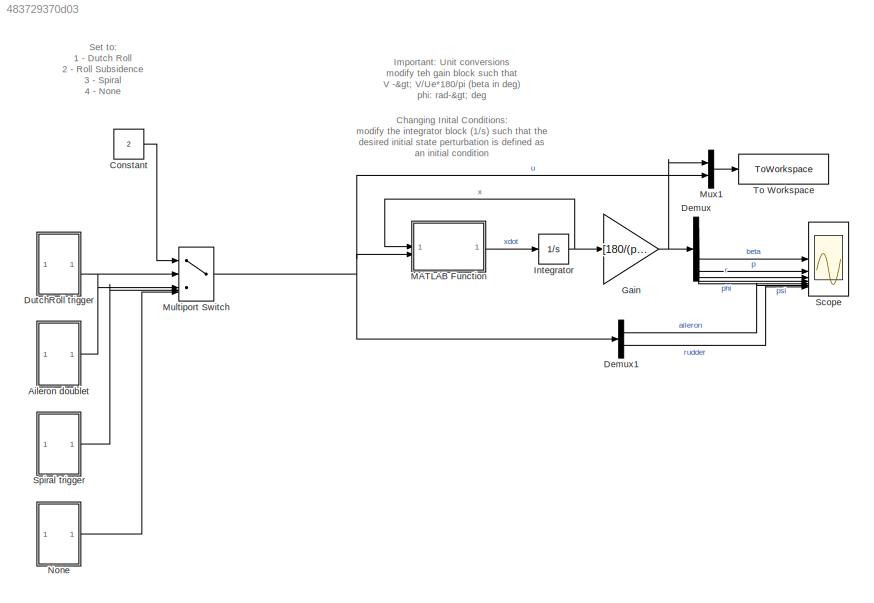
MODEL slx_483729370d03
KIND model
CONFIG AbsTol = auto
CONFIG EnableMultiTasking = off
CONFIG FixedStep = auto
CONFIG MaxStep = auto
CONFIG MinStep = auto
CONFIG RelTol = 1e-3
CONFIG SampleTimeConstraint = Unconstrained
CONFIG SolverName = VariableStepAuto
CONFIG StartTime = 0.0
CONFIG StopTime = 25
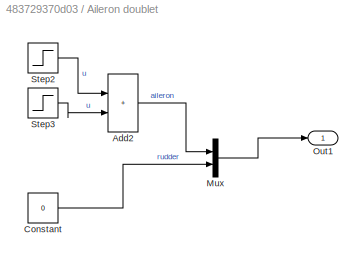
BLOCK [SubSystem] Aileron doublet
BLOCK [Sum] Aileron doublet/Add2
  IconShape = rectangular
BLOCK [Constant] Aileron doublet/Constant
  Value = 0
BLOCK [Mux] Aileron doublet/Mux
  DisplayOption = bar
  Inputs = 2
BLOCK [Outport] Aileron doublet/Out1
  VectorParamsAs1DForOutWhenUnconnected = off
BLOCK [Step] Aileron doublet/Step2
  SampleTime = 0
  Time = 0.8
BLOCK [Step] Aileron doublet/Step3
  After = -1
  SampleTime = 0
  Time = 1.6
BLOCK [Constant] Constant
  Value = 2
BLOCK [Demux] Demux
  Outputs = 5
BLOCK [Demux] Demux1
  Outputs = 2
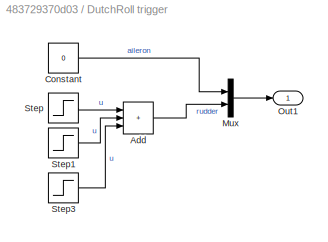
BLOCK [SubSystem] DutchRoll trigger
BLOCK [Sum] DutchRoll trigger/Add
  IconShape = rectangular
  Inputs = +++
BLOCK [Constant] DutchRoll trigger/Constant
  Value = 0
BLOCK [Mux] DutchRoll trigger/Mux
  DisplayOption = bar
  Inputs = 2
BLOCK [Outport] DutchRoll trigger/Out1
BLOCK [Step] DutchRoll trigger/Step
  SampleTime = 0
  Time = 0.6
BLOCK [Step] DutchRoll trigger/Step1
  After = -2
  SampleTime = 0
  Time = 1.2
BLOCK [Step] DutchRoll trigger/Step3
  SampleTime = 0
  Time = 1.8
BLOCK [Gain] Gain
  Gain = [180/(pi*82.3);1;1;180/pi;180/pi]
BLOCK [Integrator] Integrator
  InitialCondition = [0;0;0;0;0]
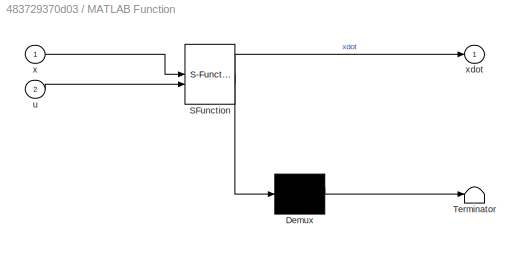
BLOCK [SubSystem] MATLAB Function
  ErrorFcn = Stateflow.Translate.translate
  PermitHierarchicalResolution = ExplicitOnly
  SFBlockType = MATLAB Function
  TreatAsAtomicUnit = on
BLOCK [Demux] MATLAB Function/ Demux 
  Outputs = 1
BLOCK [S-Function] MATLAB Function/ SFunction 
  EnableBusSupport = off
  FunctionName = sf_sfun
  PortCounts = [2 2]
  SFcnIsStateOwnerBlock = off
  SFunctionDeploymentMode = off
  Tag = Stateflow S-Function 2
BLOCK [Terminator] MATLAB Function/ Terminator 
BLOCK [Inport] MATLAB Function/u
  Port = 2
BLOCK [Inport] MATLAB Function/x
BLOCK [Outport] MATLAB Function/xdot
BLOCK [MultiPortSwitch] Multiport Switch
  InputSameDT = off
  Inputs = 4
  SaturateOnIntegerOverflow = off
BLOCK [Mux] Mux1
  DisplayOption = bar
  Inputs = 2
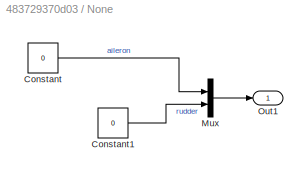
BLOCK [SubSystem] None
BLOCK [Constant] None/Constant
  Value = 0
BLOCK [Constant] None/Constant1
  Value = 0
BLOCK [Mux] None/Mux
  DisplayOption = bar
  Inputs = 2
BLOCK [Outport] None/Out1
BLOCK [Scope] Scope
  Floating = off
  NumInputPorts = 7
  ScopeSpecificationString = Simulink.scopes.TimeScopeBlockCfg('CurrentConfiguration', extmgr.ConfigurationSet(extmgr.Configuration('Core','General UI',true),extmgr.Configuration('Core','Source UI',true),extmgr.Configuration('Sources','WiredSimulink',true),extmgr.Configuration('Visuals','Time Domain',true,'SerializedDisplays',{struct('MinYLimReal','-27.00431','MaxYLimReal','31.97533','YLabelReal','','MinYLimMag','0.00000','Ma...<+4907ch>
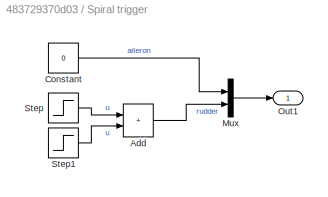
BLOCK [SubSystem] Spiral trigger
BLOCK [Sum] Spiral trigger/Add
  IconShape = rectangular
BLOCK [Constant] Spiral trigger/Constant
  Value = 0
BLOCK [Mux] Spiral trigger/Mux
  DisplayOption = bar
  Inputs = 2
BLOCK [Outport] Spiral trigger/Out1
BLOCK [Step] Spiral trigger/Step
  SampleTime = 0
  Time = 0.6
BLOCK [Step] Spiral trigger/Step1
  After = -1
  SampleTime = 0
  Time = 1.2
BLOCK [ToWorkspace] To Workspace
  FixptAsFi = on
  MaxDataPoints = inf
  SampleTime = 0.01
  SaveFormat = Timeseries
  VariableName = lat
ANNOTATION (root): Important: Unit conversions modify teh gain block such that V -> V/Ue*180/pi (beta in deg) phi: rad-> deg
ANNOTATION (root): Changing Inital Conditions: modify the integrator block (1/s) such that the desired initial state perturbation is defined as an initial condition
ANNOTATION (root): Set to: 1 - Dutch Roll 2 - Roll Subsidence 3 - Spiral 4 - None
LINE Aileron doublet/Add2:1 -> Aileron doublet/Mux:1
LINE Aileron doublet/Constant:1 -> Aileron doublet/Mux:2
LINE Aileron doublet/Mux:1 -> Aileron doublet/Out1:1
LINE Aileron doublet/Step2:1 -> Aileron doublet/Add2:1
LINE Aileron doublet/Step3:1 -> Aileron doublet/Add2:2
LINE Aileron doublet:1 -> Multiport Switch:3
LINE Constant:1 -> Multiport Switch:1
LINE Demux1:1 -> Scope:6
LINE Demux1:2 -> Scope:7
LINE Demux:1 -> Scope:1
LINE Demux:2 -> Scope:2
LINE Demux:3 -> Scope:3
LINE Demux:4 -> Scope:4
LINE Demux:5 -> Scope:5
LINE DutchRoll trigger/Add:1 -> DutchRoll trigger/Mux:2
LINE DutchRoll trigger/Constant:1 -> DutchRoll trigger/Mux:1
LINE DutchRoll trigger/Mux:1 -> DutchRoll trigger/Out1:1
LINE DutchRoll trigger/Step1:1 -> DutchRoll trigger/Add:2
LINE DutchRoll trigger/Step3:1 -> DutchRoll trigger/Add:3
LINE DutchRoll trigger/Step:1 -> DutchRoll trigger/Add:1
LINE DutchRoll trigger:1 -> Multiport Switch:2
NET Gain:1 -> Demux:1, Mux1:1
NET Integrator:1 -> Gain:1, MATLAB Function:1
LINE MATLAB Function:1 -> Integrator:1
NET Multiport Switch:1 -> Demux1:1, MATLAB Function:2, Mux1:2
LINE Mux1:1 -> To Workspace:1
LINE None/Constant1:1 -> None/Mux:2
LINE None/Constant:1 -> None/Mux:1
LINE None/Mux:1 -> None/Out1:1
LINE None:1 -> Multiport Switch:5
LINE Spiral trigger/Add:1 -> Spiral trigger/Mux:2
LINE Spiral trigger/Constant:1 -> Spiral trigger/Mux:1
LINE Spiral trigger/Mux:1 -> Spiral trigger/Out1:1
LINE Spiral trigger/Step1:1 -> Spiral trigger/Add:2
LINE Spiral trigger/Step:1 -> Spiral trigger/Add:1
LINE Spiral trigger:1 -> Multiport Switch:4
note: NET lines group one-source signal fan-out (src -> all destinations, sorted); 1:1 wires keep LINE
CHART MATLAB Function states=1 transitions=1
  STATE_LABEL 'eML_blk_kernel()'
  STATE_LABEL 'SCRIPT:\nfunction xdot = LatDirLinear(x,u)\n%inputs - x: (5x1)lateral state vector\n%         x(1)- v   m/s\n%         x(2)- p   rad/s\n%         x(3)- r   rad/s\n%         x(4)- phi rad\n%         x(5)- psi rad\n%       - u: lateral control vector\n%         u(1)- aileron deflection as percentage\n%         u(2)- rudder deflection as percentage\n%Outputs-xdot:(5x1)\n%Define parameters for aircraft\nm = ; %kg\n...<+615ch>'
CHART  states=0 transitions=0
